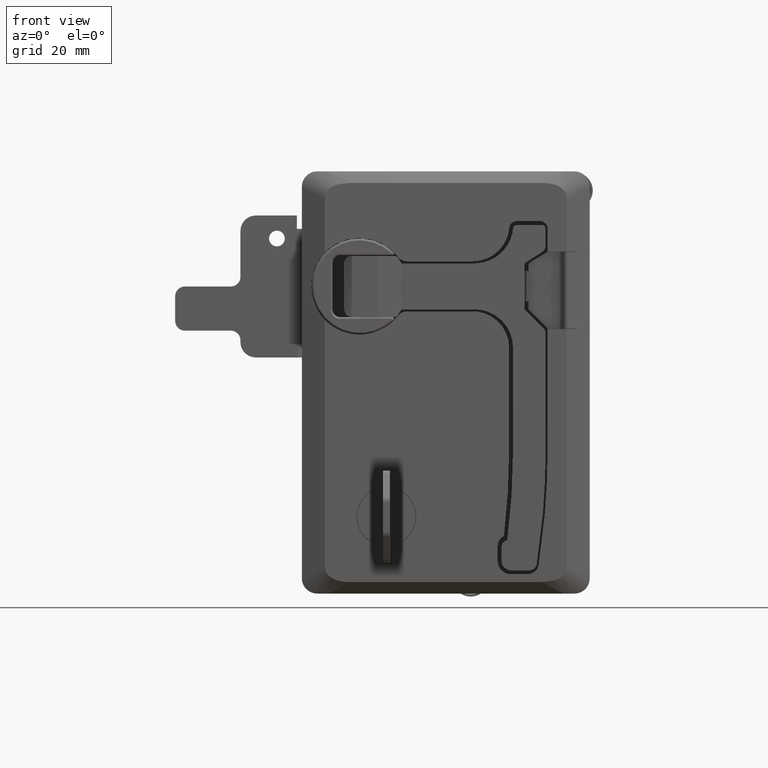
[diagram: clean part render]
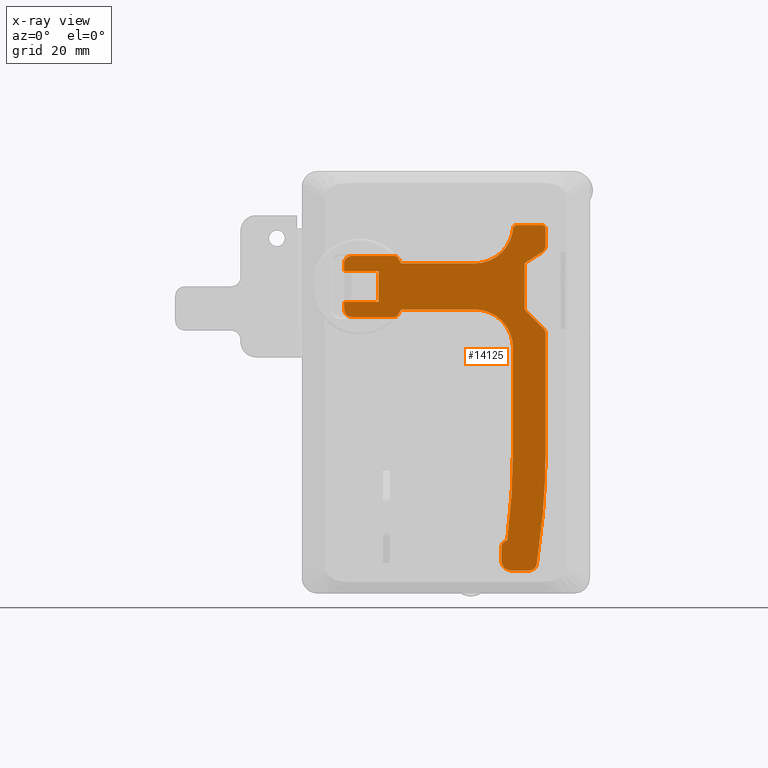
[diagram: x-ray — body ghosted, one internal face saturated and labeled with its STEP entity id]
A machine part, front view, then the same camera in x-ray: the body is ghosted and one INTERNAL B-rep face — a face not visible from any outside direction — is saturated and labeled: STEP entity #14125.
In plain terms, the highlighted face is a freeform B-spline surface patch.
Its self-contained STEP definition (entity closure, byte-faithful):
#12258=CARTESIAN_POINT('',(4.999445687218880,-17.300000000000001,4.050000000000000));
#12259=VERTEX_POINT('',#12258);
#12260=CARTESIAN_POINT('',(-4.000554312781105,-17.300000000000001,4.050000000000000));
#12261=VERTEX_POINT('',#12260);
#12262=CARTESIAN_POINT('',(4.999445687218880,-17.300000000000001,4.050000000000000));
#12263=CARTESIAN_POINT('',(-4.000554312781105,-17.300000000000001,4.050000000000000));
#12264=QUASI_UNIFORM_CURVE('',1,(#12262,#12263),.UNSPECIFIED.,.F.,.U.);
#12265=EDGE_CURVE('',#12259,#12261,#12264,.T.);
#12286=CARTESIAN_POINT('',(4.999445687218820,-17.300000000000001,-4.050000000000000));
#12287=VERTEX_POINT('',#12286);
#12288=CARTESIAN_POINT('',(4.999445687218820,-17.300000000000001,-4.050000000000000));
#12289=CARTESIAN_POINT('',(4.999445687218880,-17.300000000000001,4.050000000000000));
#12290=QUASI_UNIFORM_CURVE('',1,(#12288,#12289),.UNSPECIFIED.,.F.,.U.);
#12291=EDGE_CURVE('',#12287,#12259,#12290,.T.);
#12308=CARTESIAN_POINT('',(-4.000554312781175,-17.300000000000001,-4.050000000000000));
#12309=VERTEX_POINT('',#12308);
#12310=CARTESIAN_POINT('',(-4.000554312781175,-17.300000000000001,-4.050000000000000));
#12311=CARTESIAN_POINT('',(4.999445687218820,-17.300000000000001,-4.050000000000000));
#12312=QUASI_UNIFORM_CURVE('',1,(#12310,#12311),.UNSPECIFIED.,.F.,.U.);
#12313=EDGE_CURVE('',#12309,#12287,#12312,.T.);
#12632=CARTESIAN_POINT('',(43.436406167468952,-17.300000000000001,6.277429972350809));
#12633=VERTEX_POINT('',#12632);
#12639=CARTESIAN_POINT('',(47.573445687218900,-17.300000000000001,8.910000000000000));
#12640=VERTEX_POINT('',#12639);
#12641=CARTESIAN_POINT('',(47.573445687218900,-17.300000000000001,8.910000000000000));
#12642=CARTESIAN_POINT('',(43.436406167468952,-17.300000000000001,6.277429972350809));
#12643=QUASI_UNIFORM_CURVE('',1,(#12641,#12642),.UNSPECIFIED.,.F.,.U.);
#12644=EDGE_CURVE('',#12640,#12633,#12643,.T.);
#12681=CARTESIAN_POINT('',(48.499445687218902,-17.300000000000001,10.598000000000001));
#12682=VERTEX_POINT('',#12681);
#12683=CARTESIAN_POINT('',(47.573445687218900,-17.300000000000001,8.910000000000000));
#12684=CARTESIAN_POINT('',(47.732377844695883,-17.300000000000018,9.011038441313056));
#12685=CARTESIAN_POINT('',(47.973093367197087,-17.299999999999979,9.217291413114298));
#12686=CARTESIAN_POINT('',(48.232160425211042,-17.299999999999990,9.574621711014066));
#12687=CARTESIAN_POINT('',(48.437668808919781,-17.300000000000001,10.012178943598469));
#12688=CARTESIAN_POINT('',(48.499730902072493,-17.300000000000018,10.367809887368130));
#12689=CARTESIAN_POINT('',(48.499445687218902,-17.300000000000001,10.598000000000001));
#12690=B_SPLINE_CURVE_WITH_KNOTS('',3,(#12683,#12684,#12685,#12686,#12687,#12688,#12689),.UNSPECIFIED.,.F.,.U.,(4,1,1,1,4),(0.000000042952321,0.564979257355559,0.941632497336676,1.318282900360760,2.008812958736724),.UNSPECIFIED.);
#12691=EDGE_CURVE('',#12640,#12682,#12690,.T.);
#12714=CARTESIAN_POINT('',(48.499445687218902,-17.300000000000001,15.0));
#12715=VERTEX_POINT('',#12714);
#12716=CARTESIAN_POINT('',(48.499445687218902,-17.300000000000001,15.0));
#12717=CARTESIAN_POINT('',(48.499445687218902,-17.300000000000001,10.598000000000001));
#12718=QUASI_UNIFORM_CURVE('',1,(#12716,#12717),.UNSPECIFIED.,.F.,.U.);
#12719=EDGE_CURVE('',#12715,#12682,#12718,.T.);
#12757=CARTESIAN_POINT('',(47.499445687218902,-17.300000000000001,16.0));
#12758=VERTEX_POINT('',#12757);
#12759=CARTESIAN_POINT('',(48.499445687218902,-17.300000000000001,15.0));
#12760=CARTESIAN_POINT('',(48.499489379600732,-17.299999999999979,15.106356316464570));
#12761=CARTESIAN_POINT('',(48.462602032620318,-17.300000000000111,15.335427719767109));
#12762=CARTESIAN_POINT('',(48.302173443686343,-17.299999999999759,15.627020859919270));
#12763=CARTESIAN_POINT('',(48.093730561117709,-17.300000000000331,15.815781096116780));
#12764=CARTESIAN_POINT('',(47.834755576659283,-17.299999999999539,15.958345066148301));
#12765=CARTESIAN_POINT('',(47.638570588462137,-17.300000000000249,16.000196053203801));
#12766=CARTESIAN_POINT('',(47.499445687218902,-17.300000000000001,16.0));
#12767=B_SPLINE_CURVE_WITH_KNOTS('',3,(#12759,#12760,#12761,#12762,#12763,#12764,#12765,#12766),.UNSPECIFIED.,.F.,.U.,(4,1,1,1,1,4),(0.000000316500850,0.319072849687816,0.687261406106283,0.981751003004638,1.153582013884257,1.570835744397910),.UNSPECIFIED.);
#12768=EDGE_CURVE('',#12715,#12758,#12767,.T.);
#12791=CARTESIAN_POINT('',(40.999445687218902,-17.300000000000001,16.0));
#12792=VERTEX_POINT('',#12791);
#12793=CARTESIAN_POINT('',(40.999445687218902,-17.300000000000001,16.0));
#12794=CARTESIAN_POINT('',(47.499445687218902,-17.300000000000001,16.0));
#12795=QUASI_UNIFORM_CURVE('',1,(#12793,#12794),.UNSPECIFIED.,.F.,.U.);
#12796=EDGE_CURVE('',#12792,#12758,#12795,.T.);
#12833=CARTESIAN_POINT('',(40.003811413995500,-17.300000000000001,15.090901939784350));
#12834=VERTEX_POINT('',#12833);
#12835=CARTESIAN_POINT('',(40.999445687218902,-17.300000000000001,16.0));
#12836=CARTESIAN_POINT('',(40.860708505511333,-17.300000000000001,16.000145512334871));
#12837=CARTESIAN_POINT('',(40.598865962880517,-17.300000000000018,15.944497810902581));
#12838=CARTESIAN_POINT('',(40.301524100127267,-17.300000000000001,15.740555055522851));
#12839=CARTESIAN_POINT('',(40.086148662129382,-17.300000000000001,15.454672311828521));
#12840=CARTESIAN_POINT('',(40.016238621365559,-17.300000000000018,15.229086436556431));
#12841=CARTESIAN_POINT('',(40.003811413995500,-17.300000000000001,15.090901939784350));
#12842=B_SPLINE_CURVE_WITH_KNOTS('',3,(#12835,#12836,#12837,#12838,#12839,#12840,#12841),.UNSPECIFIED.,.F.,.U.,(4,1,1,1,4),(0.000000167832963,0.416158015613491,0.786072412228950,1.063513667466645,1.479671515247317),.UNSPECIFIED.);
#12843=EDGE_CURVE('',#12792,#12834,#12842,.T.);
#12885=CARTESIAN_POINT('',(30.045445687218901,-17.300000000000001,6.0));
#12886=VERTEX_POINT('',#12885);
#12887=CARTESIAN_POINT('',(30.045445687218901,-17.300000000000001,6.0));
#12888=CARTESIAN_POINT('',(30.584932270362760,-17.300000000000011,5.999983565211607));
#12889=CARTESIAN_POINT('',(31.740975809580998,-17.300000000000001,6.093775932016243));
#12890=CARTESIAN_POINT('',(33.351525612500097,-17.300000000000001,6.512487654711294));
#12891=CARTESIAN_POINT('',(34.832193058267123,-17.300000000000011,7.177269713426019));
#12892=CARTESIAN_POINT('',(36.229160063548001,-17.300000000000050,8.077097378582861));
#12893=CARTESIAN_POINT('',(37.395430696032307,-17.300000000000018,9.154194123126480));
#12894=CARTESIAN_POINT('',(38.370112101268923,-17.299999999999951,10.401705399327611));
#12895=CARTESIAN_POINT('',(39.144336415849807,-17.300000000000029,11.739604148541771));
#12896=CARTESIAN_POINT('',(39.739257143256282,-17.300000000000079,13.335090297472471));
#12897=CARTESIAN_POINT('',(39.951302421593716,-17.299999999999841,14.515269493797110));
#12898=CARTESIAN_POINT('',(40.003811413995500,-17.300000000000001,15.090901939784350));
#12899=B_SPLINE_CURVE_WITH_KNOTS('',3,(#12887,#12888,#12889,#12890,#12891,#12892,#12893,#12894,#12895,#12896,#12897,#12898),.UNSPECIFIED.,.F.,.U.,(4,1,1,1,1,1,1,1,1,4),(0.000000084956174,1.618469351953996,3.468152886151042,4.971023064562264,6.473925240831878,8.439149809512614,9.710831910965634,11.213703075194729,13.063390707055911,14.797461801784200),.UNSPECIFIED.);
#12900=EDGE_CURVE('',#12886,#12834,#12899,.T.);
#12921=CARTESIAN_POINT('',(10.965301786949540,-17.300000000000001,6.0));
#12922=VERTEX_POINT('',#12921);
#12923=CARTESIAN_POINT('',(10.965301786949540,-17.300000000000001,6.0));
#12924=CARTESIAN_POINT('',(30.045445687218901,-17.300000000000001,6.0));
#12925=QUASI_UNIFORM_CURVE('',1,(#12923,#12924),.UNSPECIFIED.,.F.,.U.);
#12926=EDGE_CURVE('',#12922,#12886,#12925,.T.);
#12960=CARTESIAN_POINT('',(9.958453113789890,-17.300000000000001,7.554347826086880));
#12961=VERTEX_POINT('',#12960);
#12962=CARTESIAN_POINT('',(10.965301786949540,-17.300000000000001,6.0));
#12963=CARTESIAN_POINT('',(10.668732769171120,-17.300000000000011,6.542059700867503));
#12964=CARTESIAN_POINT('',(10.331889643463111,-17.300000000000001,7.062080479851893));
#12965=CARTESIAN_POINT('',(9.958453113789890,-17.300000000000001,7.554347826086880));
#12966=B_SPLINE_CURVE_WITH_KNOTS('',3,(#12962,#12963,#12964,#12965),.UNSPECIFIED.,.F.,.U.,(4,4),(8.612930E-010,1.853660730636941),.UNSPECIFIED.);
#12967=EDGE_CURVE('',#12922,#12961,#12966,.T.);
#13002=CARTESIAN_POINT('',(9.161732519664209,-17.300000000000001,7.950000000000000));
#13003=VERTEX_POINT('',#13002);
#13004=CARTESIAN_POINT('',(9.958453113789890,-17.300000000000001,7.554347826086880));
#13005=CARTESIAN_POINT('',(9.871539217544608,-17.300000000000011,7.669257600463320));
#13006=CARTESIAN_POINT('',(9.631934192373469,-17.300000000000001,7.872960776216868));
#13007=CARTESIAN_POINT('',(9.325029625357367,-17.300000000000011,7.950321534791208));
#13008=CARTESIAN_POINT('',(9.161732519664209,-17.300000000000001,7.950000000000000));
#13009=B_SPLINE_CURVE_WITH_KNOTS('',3,(#13004,#13005,#13006,#13007,#13008),.UNSPECIFIED.,.F.,.U.,(4,1,4),(0.000000124256847,0.432157147295278,0.921881152638786),.UNSPECIFIED.);
#13010=EDGE_CURVE('',#12961,#13003,#13009,.T.);
#13035=CARTESIAN_POINT('',(-2.000554312781190,-17.300000000000001,7.950000000000000));
#13036=VERTEX_POINT('',#13035);
#13042=CARTESIAN_POINT('',(-4.000554312781105,-17.300000000000001,5.949999999999929));
#13043=VERTEX_POINT('',#13042);
#13044=CARTESIAN_POINT('',(-2.000554312781190,-17.300000000000001,7.950000000000000));
#13045=CARTESIAN_POINT('',(-2.295193162326884,-17.300000000000018,7.950496367525963));
#13046=CARTESIAN_POINT('',(-2.720174699500973,-17.299999999999990,7.854237445941465));
#13047=CARTESIAN_POINT('',(-3.256080633763391,-17.300000000000001,7.532984122323163));
#13048=CARTESIAN_POINT('',(-3.595253516111792,-17.300000000000072,7.193841811960702));
#13049=CARTESIAN_POINT('',(-3.910266946197531,-17.299999999999830,6.653323908134528));
#13050=CARTESIAN_POINT('',(-4.000943314442908,-17.300000000000079,6.228242005164690));
#13051=CARTESIAN_POINT('',(-4.000554312781105,-17.300000000000001,5.949999999999929));
#13052=B_SPLINE_CURVE_WITH_KNOTS('',3,(#13044,#13045,#13046,#13047,#13048,#13049,#13050,#13051),.UNSPECIFIED.,.F.,.U.,(4,1,1,1,1,4),(0.000000245821473,0.883602178148455,1.276337114822042,1.865334619690577,2.307162977699456,3.141671488691333),.UNSPECIFIED.);
#13053=EDGE_CURVE('',#13036,#13043,#13052,.T.);
#13078=CARTESIAN_POINT('',(-4.000554312781190,-17.300000000000001,-5.950000000000000));
#13079=VERTEX_POINT('',#13078);
#13085=CARTESIAN_POINT('',(-2.000554312781190,-17.300000000000001,-7.950000000000000));
#13086=VERTEX_POINT('',#13085);
#13087=CARTESIAN_POINT('',(-4.000554312781190,-17.300000000000001,-5.950000000000000));
#13088=CARTESIAN_POINT('',(-4.000634144936052,-17.300000000000001,-6.146356935297317));
#13089=CARTESIAN_POINT('',(-3.942276168895985,-17.300000000000001,-6.539014964019250));
#13090=CARTESIAN_POINT('',(-3.694804920302129,-17.300000000000011,-7.062370235261781));
#13091=CARTESIAN_POINT('',(-3.344741326309356,-17.300000000000001,-7.458168646460872));
#13092=CARTESIAN_POINT('',(-2.964630130571296,-17.299999999999930,-7.718923791378031));
#13093=CARTESIAN_POINT('',(-2.524105355417690,-17.300000000000079,-7.901394255968121));
#13094=CARTESIAN_POINT('',(-2.196915321415780,-17.299999999999962,-7.950092838562435));
#13095=CARTESIAN_POINT('',(-2.000554312781190,-17.300000000000001,-7.950000000000000));
#13096=B_SPLINE_CURVE_WITH_KNOTS('',3,(#13087,#13088,#13089,#13090,#13091,#13092,#13093,#13094,#13095),.UNSPECIFIED.,.F.,.U.,(4,1,1,1,1,1,4),(0.000000245822279,0.589061709178166,1.178132833295853,1.718067131497955,2.159897330612701,2.552610025335405,3.141671488691342),.UNSPECIFIED.);
#13097=EDGE_CURVE('',#13079,#13086,#13096,.T.);
#13134=CARTESIAN_POINT('',(9.161732519664179,-17.300000000000001,-7.950000000000000));
#13135=VERTEX_POINT('',#13134);
#13141=CARTESIAN_POINT('',(9.958453113789849,-17.300000000000001,-7.554347826086950));
#13142=VERTEX_POINT('',#13141);
#13143=CARTESIAN_POINT('',(9.161732519664179,-17.300000000000001,-7.950000000000000));
#13144=CARTESIAN_POINT('',(9.305808850477245,-17.300000000000018,-7.950197534025323));
#13145=CARTESIAN_POINT('',(9.612909142200584,-17.299999999999990,-7.882411413674776));
#13146=CARTESIAN_POINT('',(9.860020988083200,-17.300000000000001,-7.684643419308221));
#13147=CARTESIAN_POINT('',(9.958453113789849,-17.300000000000001,-7.554347826086950));
#13148=B_SPLINE_CURVE_WITH_KNOTS('',3,(#13143,#13144,#13145,#13146,#13147),.UNSPECIFIED.,.F.,.U.,(4,1,4),(0.000000124257029,0.432157147295385,0.921881152638728),.UNSPECIFIED.);
#13149=EDGE_CURVE('',#13135,#13142,#13148,.T.);
#13181=CARTESIAN_POINT('',(10.965301786949500,-17.300000000000001,-6.000000000000091));
#13182=VERTEX_POINT('',#13181);
#13183=CARTESIAN_POINT('',(9.958453113789849,-17.300000000000001,-7.554347826086950));
#13184=CARTESIAN_POINT('',(10.331884515267459,-17.299999999999979,-7.062075930427229));
#13185=CARTESIAN_POINT('',(10.668737938893051,-17.300000000000001,-6.542063967062159));
#13186=CARTESIAN_POINT('',(10.965301786949500,-17.300000000000001,-6.000000000000091));
#13187=B_SPLINE_CURVE_WITH_KNOTS('',3,(#13183,#13184,#13185,#13186),.UNSPECIFIED.,.F.,.U.,(4,4),(8.611938E-010,1.853660730636925),.UNSPECIFIED.);
#13188=EDGE_CURVE('',#13142,#13182,#13187,.T.);
#13211=CARTESIAN_POINT('',(29.999445687218898,-17.300000000000001,-6.000000000000091));
#13212=VERTEX_POINT('',#13211);
#13213=CARTESIAN_POINT('',(29.999445687218898,-17.300000000000001,-6.000000000000091));
#13214=CARTESIAN_POINT('',(10.965301786949500,-17.300000000000001,-6.000000000000091));
#13215=QUASI_UNIFORM_CURVE('',1,(#13213,#13214),.UNSPECIFIED.,.F.,.U.);
#13216=EDGE_CURVE('',#13212,#13182,#13215,.T.);
#13258=CARTESIAN_POINT('',(39.999445687218902,-17.300000000000001,-16.0));
#13259=VERTEX_POINT('',#13258);
#13260=CARTESIAN_POINT('',(39.999445687218902,-17.300000000000001,-16.0));
#13261=CARTESIAN_POINT('',(39.999521601285053,-17.300000000000018,-15.345505381680290));
#13262=CARTESIAN_POINT('',(39.886585089060041,-17.300000000000001,-14.200168151672161));
#13263=CARTESIAN_POINT('',(39.394326478456406,-17.299999999999979,-12.421231086226451));
#13264=CARTESIAN_POINT('',(38.521649138209192,-17.300000000000129,-10.604634672030750));
#13265=CARTESIAN_POINT('',(37.130945296821913,-17.299999999999631,-8.867015384524470));
#13266=CARTESIAN_POINT('',(35.517449158138660,-17.300000000000590,-7.591991905245815));
#13267=CARTESIAN_POINT('',(34.028721469914302,-17.299999999999521,-6.808072307670805));
#13268=CARTESIAN_POINT('',(32.249143470169130,-17.300000000000701,-6.183474654990405));
#13269=CARTESIAN_POINT('',(30.899411227462000,-17.299999999999489,-5.999719523198126));
#13270=CARTESIAN_POINT('',(29.999445687218898,-17.300000000000001,-6.000000000000091));
#13271=B_SPLINE_CURVE_WITH_KNOTS('',3,(#13260,#13261,#13262,#13263,#13264,#13265,#13266,#13267,#13268,#13269,#13270),.UNSPECIFIED.,.F.,.U.,(4,1,1,1,1,1,1,1,4),(0.000000081112173,1.963483693781921,3.436132810592236,5.522382932930709,7.976727211879236,10.062957302579029,11.658326452870480,13.008253995154350,15.708061828752969),.UNSPECIFIED.);
#13272=EDGE_CURVE('',#13259,#13212,#13271,.T.);
#13295=CARTESIAN_POINT('',(39.999445687218902,-17.300000000000001,-42.488999999999997));
#13296=VERTEX_POINT('',#13295);
#13297=CARTESIAN_POINT('',(39.999445687218902,-17.300000000000001,-42.488999999999997));
#13298=CARTESIAN_POINT('',(39.999445687218902,-17.300000000000001,-16.0));
#13299=QUASI_UNIFORM_CURVE('',1,(#13297,#13298),.UNSPECIFIED.,.F.,.U.);
#13300=EDGE_CURVE('',#13296,#13259,#13299,.T.);
#13340=CARTESIAN_POINT('',(38.499363815582853,-17.300000000000001,-66.063529467907998));
#13341=VERTEX_POINT('',#13340);
#13342=CARTESIAN_POINT('',(38.499363815582832,-17.300000000000001,-66.063529467908140));
#13343=CARTESIAN_POINT('',(39.999445687219101,-17.300000000000001,-54.323990938302572));
#13344=CARTESIAN_POINT('',(39.999445687218902,-17.300000000000001,-42.488999999999997));
#13352=(BOUNDED_CURVE()B_SPLINE_CURVE(2,(#13342,#13343,#13344),.UNSPECIFIED.,.F.,.U.)CURVE()GEOMETRIC_REPRESENTATION_ITEM()QUASI_UNIFORM_CURVE()RATIONAL_B_SPLINE_CURVE((1.0,0.997981645382943,1.0))REPRESENTATION_ITEM(''));
#13353=EDGE_CURVE('',#13341,#13296,#13352,.T.);
#13390=CARTESIAN_POINT('',(36.999445687218902,-17.300000000000001,-68.0));
#13391=VERTEX_POINT('',#13390);
#13392=CARTESIAN_POINT('',(38.499363815582853,-17.300000000000001,-66.063529467907998));
#13393=CARTESIAN_POINT('',(38.206675656421979,-17.299999999999990,-66.138624923226118));
#13394=CARTESIAN_POINT('',(37.794729230687373,-17.300000000000040,-66.353561376003270));
#13395=CARTESIAN_POINT('',(37.370180105358003,-17.299999999999951,-66.807977325186044));
#13396=CARTESIAN_POINT('',(37.083954621186983,-17.299999999999969,-67.313674236716338));
#13397=CARTESIAN_POINT('',(36.999176601148378,-17.300000000000001,-67.739082871520210));
#13398=CARTESIAN_POINT('',(36.999445687218902,-17.300000000000001,-68.0));
#13399=B_SPLINE_CURVE_WITH_KNOTS('',3,(#13392,#13393,#13394,#13395,#13396,#13397,#13398),.UNSPECIFIED.,.F.,.U.,(4,1,1,1,4),(0.000000183358273,0.906205162872697,1.359249272293292,1.853570372161170,2.636194167149164),.UNSPECIFIED.);
#13400=EDGE_CURVE('',#13341,#13391,#13399,.T.);
#13423=CARTESIAN_POINT('',(36.999445687218902,-17.300000000000001,-71.500000000000000));
#13424=VERTEX_POINT('',#13423);
#13425=CARTESIAN_POINT('',(36.999445687218902,-17.300000000000001,-71.500000000000000));
#13426=CARTESIAN_POINT('',(36.999445687218902,-17.300000000000001,-68.0));
#13427=QUASI_UNIFORM_CURVE('',1,(#13425,#13426),.UNSPECIFIED.,.F.,.U.);
#13428=EDGE_CURVE('',#13424,#13391,#13427,.T.);
#13467=CARTESIAN_POINT('',(39.499445687218902,-17.300000000000001,-74.0));
#13468=VERTEX_POINT('',#13467);
#13469=CARTESIAN_POINT('',(36.999445687218902,-17.300000000000001,-71.500000000000000));
#13470=CARTESIAN_POINT('',(36.999155804586771,-17.299999999999990,-71.806847780393952));
#13471=CARTESIAN_POINT('',(37.087188095976138,-17.299999999999990,-72.277049531481893));
#13472=CARTESIAN_POINT('',(37.373709619690779,-17.300000000000040,-72.846130546009846));
#13473=CARTESIAN_POINT('',(37.677161996889637,-17.299999999999930,-73.234973408467596));
#13474=CARTESIAN_POINT('',(38.081766047516922,-17.300000000000050,-73.584005480086176));
#13475=CARTESIAN_POINT('',(38.681485746544048,-17.299999999999990,-73.904635749720413));
#13476=CARTESIAN_POINT('',(39.192608501836787,-17.300000000000001,-74.000279301060075));
#13477=CARTESIAN_POINT('',(39.499445687218902,-17.300000000000001,-74.0));
#13478=B_SPLINE_CURVE_WITH_KNOTS('',3,(#13469,#13470,#13471,#13472,#13473,#13474,#13475,#13476,#13477),.UNSPECIFIED.,.F.,.U.,(4,1,1,1,1,1,4),(0.000000174684382,0.920408363299027,1.411319006959615,1.902206483304161,2.393066643528560,3.006681240643972,3.927089360845364),.UNSPECIFIED.);
#13479=EDGE_CURVE('',#13424,#13468,#13478,.T.);
#13502=CARTESIAN_POINT('',(44.223861660866802,-17.300000000000001,-74.0));
#13503=VERTEX_POINT('',#13502);
#13504=CARTESIAN_POINT('',(44.223861660866802,-17.300000000000001,-74.0));
#13505=CARTESIAN_POINT('',(39.499445687218902,-17.300000000000001,-74.0));
#13506=QUASI_UNIFORM_CURVE('',1,(#13504,#13505),.UNSPECIFIED.,.F.,.U.);
#13507=EDGE_CURVE('',#13503,#13468,#13506,.T.);
#13545=CARTESIAN_POINT('',(46.200219842411187,-17.300000000000001,-72.306607792207799));
#13546=VERTEX_POINT('',#13545);
#13547=CARTESIAN_POINT('',(44.223861660866802,-17.300000000000001,-74.0));
#13548=CARTESIAN_POINT('',(44.400972866960281,-17.299999999999969,-74.000052743850318));
#13549=CARTESIAN_POINT('',(44.755175636142361,-17.300000000000029,-73.952642378621533));
#13550=CARTESIAN_POINT('',(45.262961816859267,-17.300000000000001,-73.738941582359999));
#13551=CARTESIAN_POINT('',(45.693633693524127,-17.299999999999979,-73.394001093817081));
#13552=CARTESIAN_POINT('',(46.039146742516678,-17.300000000000079,-72.908867624976864));
#13553=CARTESIAN_POINT('',(46.166392944317749,-17.299999999999869,-72.525405399724065));
#13554=CARTESIAN_POINT('',(46.200219842411187,-17.300000000000001,-72.306607792207799));
#13555=B_SPLINE_CURVE_WITH_KNOTS('',3,(#13547,#13548,#13549,#13550,#13551,#13552,#13553,#13554),.UNSPECIFIED.,.F.,.U.,(4,1,1,1,1,4),(0.000000200391131,0.531334072308610,1.062709269841856,1.638275822370673,2.169652400767940,2.833828852765348),.UNSPECIFIED.);
#13556=EDGE_CURVE('',#13503,#13546,#13555,.T.);
#13596=CARTESIAN_POINT('',(48.499445687218902,-17.300000000000001,-42.488999999999997));
#13597=VERTEX_POINT('',#13596);
#13598=CARTESIAN_POINT('',(46.200219842411023,-17.300000000000001,-72.306607792207856));
#13599=CARTESIAN_POINT('',(48.499445687218703,-17.300000000000001,-57.486450167164165));
#13600=CARTESIAN_POINT('',(48.499445687218902,-17.300000000000001,-42.488999999999997));
#13608=(BOUNDED_CURVE()B_SPLINE_CURVE(2,(#13598,#13599,#13600),.UNSPECIFIED.,.F.,.U.)CURVE()GEOMETRIC_REPRESENTATION_ITEM()QUASI_UNIFORM_CURVE()RATIONAL_B_SPLINE_CURVE((1.0,0.997040241832448,1.0))REPRESENTATION_ITEM(''));
#13609=EDGE_CURVE('',#13546,#13597,#13608,.T.);
#13632=CARTESIAN_POINT('',(48.499445687218802,-17.300000000000001,-12.329000000000001));
#13633=VERTEX_POINT('',#13632);
#13634=CARTESIAN_POINT('',(48.499445687218802,-17.300000000000001,-12.329000000000001));
#13635=CARTESIAN_POINT('',(48.499445687218902,-17.300000000000001,-42.488999999999997));
#13636=QUASI_UNIFORM_CURVE('',1,(#13634,#13635),.UNSPECIFIED.,.F.,.U.);
#13637=EDGE_CURVE('',#13633,#13597,#13636,.T.);
#13673=CARTESIAN_POINT('',(47.913445687218797,-17.300000000000001,-10.914000000000000));
#13674=VERTEX_POINT('',#13673);
#13675=CARTESIAN_POINT('',(48.499445687218802,-17.300000000000001,-12.329000000000001));
#13676=CARTESIAN_POINT('',(48.499490022840860,-17.299999999999990,-12.165288772211319));
#13677=CARTESIAN_POINT('',(48.455131855014812,-17.300000000000011,-11.805100342623779));
#13678=CARTESIAN_POINT('',(48.252490963520167,-17.300000000000050,-11.315843252089980));
#13679=CARTESIAN_POINT('',(48.029228484735057,-17.300000000000001,-11.029741648571809));
#13680=CARTESIAN_POINT('',(47.913445687218797,-17.300000000000001,-10.914000000000000));
#13681=B_SPLINE_CURVE_WITH_KNOTS('',3,(#13675,#13676,#13677,#13678,#13679,#13680),.UNSPECIFIED.,.F.,.U.,(4,1,1,4),(0.000000067502832,0.491156480844465,1.080522893881582,1.571679307223356),.UNSPECIFIED.);
#13682=EDGE_CURVE('',#13633,#13674,#13681,.T.);
#13705=CARTESIAN_POINT('',(43.304733892946700,-17.300000000000001,-6.305288205727869));
#13706=VERTEX_POINT('',#13705);
#13707=CARTESIAN_POINT('',(43.304733892946700,-17.300000000000001,-6.305288205727869));
#13708=CARTESIAN_POINT('',(47.913445687218797,-17.300000000000001,-10.914000000000000));
#13709=QUASI_UNIFORM_CURVE('',1,(#13707,#13708),.UNSPECIFIED.,.F.,.U.);
#13710=EDGE_CURVE('',#13706,#13674,#13709,.T.);
#13745=CARTESIAN_POINT('',(42.999445687218902,-17.300000000000001,-5.586000000000071));
#13746=VERTEX_POINT('',#13745);
#13747=CARTESIAN_POINT('',(42.999445687218902,-17.300000000000001,-5.586000000000071));
#13748=CARTESIAN_POINT('',(42.999435296688681,-17.300000000000018,-5.686337022311919));
#13749=CARTESIAN_POINT('',(43.039947123830750,-17.300000000000011,-5.953988415708243));
#13750=CARTESIAN_POINT('',(43.184131732551798,-17.299999999999969,-6.189298802741844));
#13751=CARTESIAN_POINT('',(43.304733892946700,-17.300000000000001,-6.305288205727869));
#13752=B_SPLINE_CURVE_WITH_KNOTS('',3,(#13747,#13748,#13749,#13750,#13751),.UNSPECIFIED.,.F.,.U.,(4,1,4),(0.000000078589337,0.301058255974843,0.802798231263382),.UNSPECIFIED.);
#13753=EDGE_CURVE('',#13746,#13706,#13752,.T.);
#13776=CARTESIAN_POINT('',(42.999445687218902,-17.300000000000001,5.451000000000001));
#13777=VERTEX_POINT('',#13776);
#13778=CARTESIAN_POINT('',(42.999445687218902,-17.300000000000001,5.451000000000001));
#13779=CARTESIAN_POINT('',(42.999445687218902,-17.300000000000001,-5.586000000000071));
#13780=QUASI_UNIFORM_CURVE('',1,(#13778,#13779),.UNSPECIFIED.,.F.,.U.);
#13781=EDGE_CURVE('',#13777,#13746,#13780,.T.);
#13820=CARTESIAN_POINT('',(43.436406167468952,-17.300000000000001,6.277429972350809));
#13821=CARTESIAN_POINT('',(43.310604162308650,-17.299999999999990,6.192040994316695));
#13822=CARTESIAN_POINT('',(43.085497037616292,-17.300000000000029,5.947054757220115));
#13823=CARTESIAN_POINT('',(42.999013043964823,-17.299999999999979,5.623343483436630));
#13824=CARTESIAN_POINT('',(42.999445687218902,-17.300000000000001,5.451000000000001));
#13825=B_SPLINE_CURVE_WITH_KNOTS('',3,(#13820,#13821,#13822,#13823,#13824),.UNSPECIFIED.,.F.,.U.,(4,1,4),(0.000000127205344,0.456010728101503,0.972774661863706),.UNSPECIFIED.);
#13826=EDGE_CURVE('',#12633,#13777,#13825,.T.);
#14045=CARTESIAN_POINT('',(-2.000554312781190,-17.300000000000001,7.950000000000000));
#14046=CARTESIAN_POINT('',(9.161732519664209,-17.300000000000001,7.950000000000000));
#14047=QUASI_UNIFORM_CURVE('',1,(#14045,#14046),.UNSPECIFIED.,.F.,.U.);
#14048=EDGE_CURVE('',#13036,#13003,#14047,.T.);
#14063=CARTESIAN_POINT('',(9.161732519664179,-17.300000000000001,-7.950000000000000));
#14064=CARTESIAN_POINT('',(-2.000554312781190,-17.300000000000001,-7.950000000000000));
#14065=QUASI_UNIFORM_CURVE('',1,(#14063,#14064),.UNSPECIFIED.,.F.,.U.);
#14066=EDGE_CURVE('',#13135,#13086,#14065,.T.);
#14073=CARTESIAN_POINT('',(-6.622929211026007,-17.300000000000001,20.495499825562540));
#14074=CARTESIAN_POINT('',(51.121821993623463,-17.300000000000001,20.495499825562540));
#14075=CARTESIAN_POINT('',(-6.622929211026007,-17.300000000000001,-78.495502239550646));
#14076=CARTESIAN_POINT('',(51.121821993623463,-17.300000000000001,-78.495502239550646));
#14077=B_SPLINE_SURFACE_WITH_KNOTS('',1,1,((#14073,#14075),(#14074,#14076)),.UNSPECIFIED.,.F.,.F.,.U.,(2,2),(2,2),(0.0,57.744751204649468),(0.0,98.991002065113179),.UNSPECIFIED.);
#14078=ORIENTED_EDGE('',*,*,#12313,.T.);
#14079=ORIENTED_EDGE('',*,*,#12291,.T.);
#14080=ORIENTED_EDGE('',*,*,#12265,.T.);
#14081=CARTESIAN_POINT('',(-4.000554312781105,-17.300000000000001,4.050000000000000));
#14082=CARTESIAN_POINT('',(-4.000554312781105,-17.300000000000001,5.949999999999929));
#14083=QUASI_UNIFORM_CURVE('',1,(#14081,#14082),.UNSPECIFIED.,.F.,.U.);
#14084=EDGE_CURVE('',#12261,#13043,#14083,.T.);
#14085=ORIENTED_EDGE('',*,*,#14084,.T.);
#14086=ORIENTED_EDGE('',*,*,#13053,.F.);
#14087=ORIENTED_EDGE('',*,*,#14048,.T.);
#14088=ORIENTED_EDGE('',*,*,#13010,.F.);
#14089=ORIENTED_EDGE('',*,*,#12967,.F.);
#14090=ORIENTED_EDGE('',*,*,#12926,.T.);
#14091=ORIENTED_EDGE('',*,*,#12900,.T.);
#14092=ORIENTED_EDGE('',*,*,#12843,.F.);
#14093=ORIENTED_EDGE('',*,*,#12796,.T.);
#14094=ORIENTED_EDGE('',*,*,#12768,.F.);
#14095=ORIENTED_EDGE('',*,*,#12719,.T.);
#14096=ORIENTED_EDGE('',*,*,#12691,.F.);
#14097=ORIENTED_EDGE('',*,*,#12644,.T.);
#14098=ORIENTED_EDGE('',*,*,#13826,.T.);
#14099=ORIENTED_EDGE('',*,*,#13781,.T.);
#14100=ORIENTED_EDGE('',*,*,#13753,.T.);
#14101=ORIENTED_EDGE('',*,*,#13710,.T.);
#14102=ORIENTED_EDGE('',*,*,#13682,.F.);
#14103=ORIENTED_EDGE('',*,*,#13637,.T.);
#14104=ORIENTED_EDGE('',*,*,#13609,.F.);
#14105=ORIENTED_EDGE('',*,*,#13556,.F.);
#14106=ORIENTED_EDGE('',*,*,#13507,.T.);
#14107=ORIENTED_EDGE('',*,*,#13479,.F.);
#14108=ORIENTED_EDGE('',*,*,#13428,.T.);
#14109=ORIENTED_EDGE('',*,*,#13400,.F.);
#14110=ORIENTED_EDGE('',*,*,#13353,.T.);
#14111=ORIENTED_EDGE('',*,*,#13300,.T.);
#14112=ORIENTED_EDGE('',*,*,#13272,.T.);
#14113=ORIENTED_EDGE('',*,*,#13216,.T.);
#14114=ORIENTED_EDGE('',*,*,#13188,.F.);
#14115=ORIENTED_EDGE('',*,*,#13149,.F.);
#14116=ORIENTED_EDGE('',*,*,#14066,.T.);
#14117=ORIENTED_EDGE('',*,*,#13097,.F.);
#14118=CARTESIAN_POINT('',(-4.000554312781190,-17.300000000000001,-5.950000000000000));
#14119=CARTESIAN_POINT('',(-4.000554312781175,-17.300000000000001,-4.050000000000000));
#14120=QUASI_UNIFORM_CURVE('',1,(#14118,#14119),.UNSPECIFIED.,.F.,.U.);
#14121=EDGE_CURVE('',#13079,#12309,#14120,.T.);
#14122=ORIENTED_EDGE('',*,*,#14121,.T.);
#14123=EDGE_LOOP('',(#14078,#14079,#14080,#14085,#14086,#14087,#14088,#14089,#14090,#14091,#14092,#14093,#14094,#14095,#14096,#14097,#14098,#14099,#14100,#14101,#14102,#14103,#14104,#14105,#14106,#14107,#14108,#14109,#14110,#14111,#14112,#14113,#14114,#14115,#14116,#14117,#14122));
#14124=FACE_OUTER_BOUND('',#14123,.T.);
#14125=ADVANCED_FACE('',(#14124),#14077,.T.);